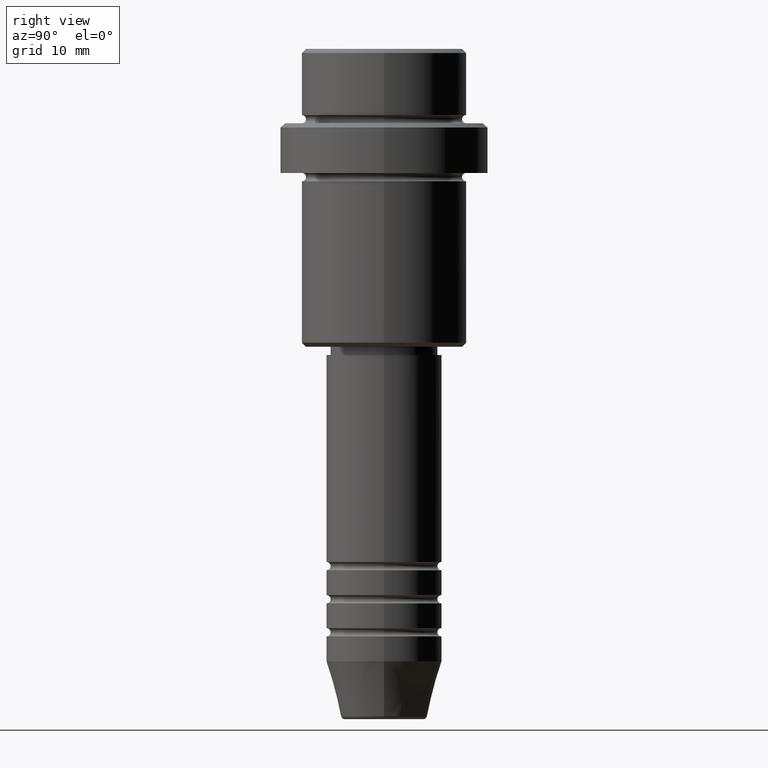
[diagram: clean part render]
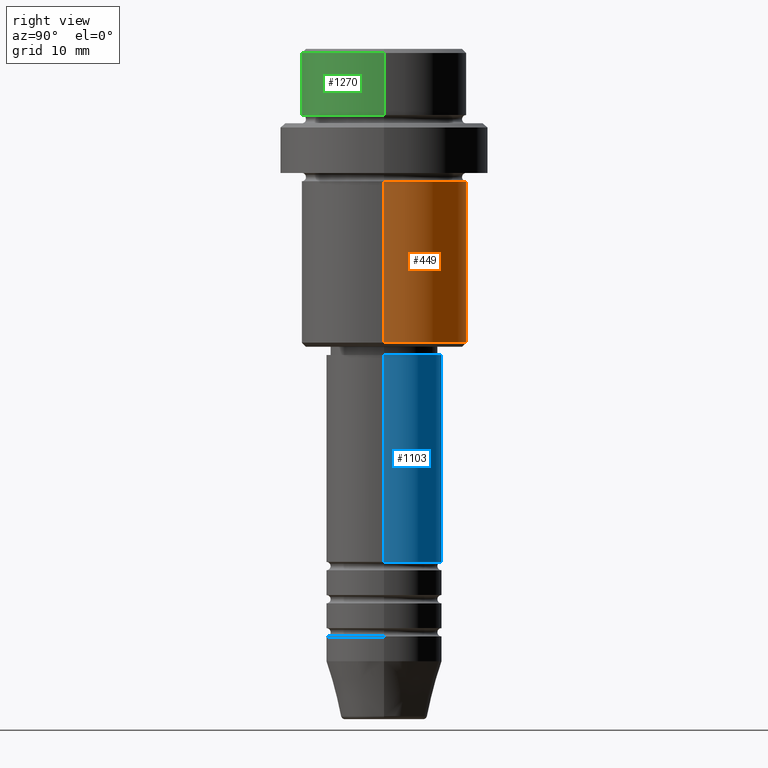
[diagram: same view with three faces highlighted in distinct colors, each labeled with its STEP entity id]
A machine part, right view with three faces highlighted in distinct colors.
Their STEP definitions:

[orange] entity #449 — the highlighted cylindrical surface (partial cylindrical patch) has radius 10 mm, axis along (-0, -0, 1).
#42 = DIRECTION ( 'NONE',  ( -0.000000000000000000, -0.000000000000000000, 1.000000000000000000 ) ) ;
#43 = EDGE_CURVE ( 'NONE', #511, #964, #647, .T. ) ;
#85 = CARTESIAN_POINT ( 'NONE',  ( 9.999999999999998224, 0.000000000000000000, -16.00000000000000000 ) ) ;
#106 = CIRCLE ( 'NONE', #1359, 9.999999999999998224 ) ;
#263 = VECTOR ( 'NONE', #1017, 1000.000000000000000 ) ;
#269 = CYLINDRICAL_SURFACE ( 'NONE', #1224, 9.999999999999998224 ) ;
#312 = CARTESIAN_POINT ( 'NONE',  ( -9.999999999999998224, 1.224646799147353059E-15, 0.000000000000000000 ) ) ;
#377 = AXIS2_PLACEMENT_3D ( 'NONE', #655, #438, #989 ) ;
#426 = CIRCLE ( 'NONE', #377, 9.999999999999998224 ) ;
#438 = DIRECTION ( 'NONE',  ( -0.000000000000000000, -0.000000000000000000, 1.000000000000000000 ) ) ;
#449 = ADVANCED_FACE ( 'NONE', ( #912 ), #269, .T. ) ;
#495 = CARTESIAN_POINT ( 'NONE',  ( 0.000000000000000000, 0.000000000000000000, 0.000000000000000000 ) ) ;
#501 = CARTESIAN_POINT ( 'NONE',  ( -9.999999999999998224, 1.224646799147353059E-15, -35.50000000000001421 ) ) ;
#506 = CARTESIAN_POINT ( 'NONE',  ( 9.999999999999998224, 0.000000000000000000, -35.50000000000001421 ) ) ;
#509 = VECTOR ( 'NONE', #636, 1000.000000000000000 ) ;
#511 = VERTEX_POINT ( 'NONE', #501 ) ;
#533 = VERTEX_POINT ( 'NONE', #506 ) ;
#636 = DIRECTION ( 'NONE',  ( -0.000000000000000000, -0.000000000000000000, 1.000000000000000000 ) ) ;
#647 = LINE ( 'NONE', #312, #509 ) ;
#655 = CARTESIAN_POINT ( 'NONE',  ( 0.000000000000000000, 0.000000000000000000, -35.50000000000001421 ) ) ;
#667 = VERTEX_POINT ( 'NONE', #85 ) ;
#668 = CARTESIAN_POINT ( 'NONE',  ( -9.999999999999998224, 1.224646799147353059E-15, -16.00000000000000000 ) ) ;
#678 = CARTESIAN_POINT ( 'NONE',  ( 9.999999999999998224, 0.000000000000000000, 0.000000000000000000 ) ) ;
#681 = LINE ( 'NONE', #678, #263 ) ;
#707 = ORIENTED_EDGE ( 'NONE', *, *, #1108, .F. ) ;
#887 = CARTESIAN_POINT ( 'NONE',  ( 0.000000000000000000, 0.000000000000000000, -16.00000000000000000 ) ) ;
#896 = DIRECTION ( 'NONE',  ( 1.000000000000000000, 0.000000000000000000, 0.000000000000000000 ) ) ;
#912 = FACE_OUTER_BOUND ( 'NONE', #1181, .T. ) ;
#956 = ORIENTED_EDGE ( 'NONE', *, *, #43, .T. ) ;
#964 = VERTEX_POINT ( 'NONE', #668 ) ;
#974 = ORIENTED_EDGE ( 'NONE', *, *, #998, .T. ) ;
#989 = DIRECTION ( 'NONE',  ( -1.000000000000000000, 0.000000000000000000, 0.000000000000000000 ) ) ;
#998 = EDGE_CURVE ( 'NONE', #533, #511, #426, .T. ) ;
#1017 = DIRECTION ( 'NONE',  ( -0.000000000000000000, -0.000000000000000000, 1.000000000000000000 ) ) ;
#1033 = EDGE_CURVE ( 'NONE', #667, #964, #106, .T. ) ;
#1108 = EDGE_CURVE ( 'NONE', #533, #667, #681, .T. ) ;
#1181 = EDGE_LOOP ( 'NONE', ( #974, #956, #1363, #707 ) ) ;
#1224 = AXIS2_PLACEMENT_3D ( 'NONE', #495, #42, #1357 ) ;
#1327 = DIRECTION ( 'NONE',  ( -0.000000000000000000, -0.000000000000000000, 1.000000000000000000 ) ) ;
#1357 = DIRECTION ( 'NONE',  ( 1.000000000000000000, 0.000000000000000000, 0.000000000000000000 ) ) ;
#1359 = AXIS2_PLACEMENT_3D ( 'NONE', #887, #1327, #896 ) ;
#1363 = ORIENTED_EDGE ( 'NONE', *, *, #1033, .F. ) ;

[blue] entity #1103 — the highlighted cylindrical surface (partial cylindrical patch) has radius 7 mm, axis along (-0, -0, 1).
#5 = DIRECTION ( 'NONE',  ( -0.000000000000000000, -0.000000000000000000, 1.000000000000000000 ) ) ;
#12 = VECTOR ( 'NONE', #21, 1000.000000000000000 ) ;
#21 = DIRECTION ( 'NONE',  ( -0.000000000000000000, -0.000000000000000000, 1.000000000000000000 ) ) ;
#196 = ORIENTED_EDGE ( 'NONE', *, *, #1153, .F. ) ;
#287 = ORIENTED_EDGE ( 'NONE', *, *, #1366, .T. ) ;
#331 = CARTESIAN_POINT ( 'NONE',  ( 7.000000000000000000, 0.000000000000000000, -61.99999999999987921 ) ) ;
#349 = CARTESIAN_POINT ( 'NONE',  ( -7.000000000000000000, 8.572527594031473190E-16, 0.000000000000000000 ) ) ;
#358 = DIRECTION ( 'NONE',  ( -0.000000000000000000, -0.000000000000000000, 1.000000000000000000 ) ) ;
#382 = EDGE_LOOP ( 'NONE', ( #639, #287, #965, #196 ) ) ;
#470 = AXIS2_PLACEMENT_3D ( 'NONE', #1001, #5, #556 ) ;
#518 = AXIS2_PLACEMENT_3D ( 'NONE', #1030, #684, #1342 ) ;
#541 = VECTOR ( 'NONE', #589, 1000.000000000000000 ) ;
#549 = CARTESIAN_POINT ( 'NONE',  ( -7.000000000000000000, 8.572527594031473190E-16, -37.00000000000000000 ) ) ;
#556 = DIRECTION ( 'NONE',  ( 1.000000000000000000, 0.000000000000000000, 0.000000000000000000 ) ) ;
#581 = CYLINDRICAL_SURFACE ( 'NONE', #834, 7.000000000000000000 ) ;
#587 = DIRECTION ( 'NONE',  ( 1.000000000000000000, 0.000000000000000000, 0.000000000000000000 ) ) ;
#589 = DIRECTION ( 'NONE',  ( -0.000000000000000000, -0.000000000000000000, 1.000000000000000000 ) ) ;
#639 = ORIENTED_EDGE ( 'NONE', *, *, #1160, .T. ) ;
#684 = DIRECTION ( 'NONE',  ( -0.000000000000000000, -0.000000000000000000, 1.000000000000000000 ) ) ;
#744 = VERTEX_POINT ( 'NONE', #1192 ) ;
#763 = CIRCLE ( 'NONE', #470, 7.000000000000000000 ) ;
#809 = CARTESIAN_POINT ( 'NONE',  ( 7.000000000000000000, 0.000000000000000000, -37.00000000000000000 ) ) ;
#834 = AXIS2_PLACEMENT_3D ( 'NONE', #1340, #358, #587 ) ;
#904 = FACE_OUTER_BOUND ( 'NONE', #382, .T. ) ;
#965 = ORIENTED_EDGE ( 'NONE', *, *, #1316, .F. ) ;
#995 = LINE ( 'NONE', #349, #12 ) ;
#1001 = CARTESIAN_POINT ( 'NONE',  ( 0.000000000000000000, 0.000000000000000000, -37.00000000000000000 ) ) ;
#1030 = CARTESIAN_POINT ( 'NONE',  ( 0.000000000000000000, 0.000000000000000000, -61.99999999999987921 ) ) ;
#1103 = ADVANCED_FACE ( 'NONE', ( #904 ), #581, .T. ) ;
#1128 = CIRCLE ( 'NONE', #518, 7.000000000000000000 ) ;
#1132 = LINE ( 'NONE', #1246, #541 ) ;
#1150 = VERTEX_POINT ( 'NONE', #809 ) ;
#1153 = EDGE_CURVE ( 'NONE', #1408, #1150, #1132, .T. ) ;
#1160 = EDGE_CURVE ( 'NONE', #1408, #744, #1128, .T. ) ;
#1192 = CARTESIAN_POINT ( 'NONE',  ( -7.000000000000000000, 8.572527594031473190E-16, -61.99999999999987921 ) ) ;
#1246 = CARTESIAN_POINT ( 'NONE',  ( 7.000000000000000000, 0.000000000000000000, 0.000000000000000000 ) ) ;
#1316 = EDGE_CURVE ( 'NONE', #1150, #1390, #763, .T. ) ;
#1340 = CARTESIAN_POINT ( 'NONE',  ( 0.000000000000000000, 0.000000000000000000, 0.000000000000000000 ) ) ;
#1342 = DIRECTION ( 'NONE',  ( 1.000000000000000000, 0.000000000000000000, 0.000000000000000000 ) ) ;
#1366 = EDGE_CURVE ( 'NONE', #744, #1390, #995, .T. ) ;
#1390 = VERTEX_POINT ( 'NONE', #549 ) ;
#1408 = VERTEX_POINT ( 'NONE', #331 ) ;

[green] entity #1270 — the highlighted cylindrical surface (partial cylindrical patch) has radius 10 mm, axis along (-0, -0, 1).
#4 = EDGE_CURVE ( 'NONE', #1183, #1197, #971, .T. ) ;
#13 = CIRCLE ( 'NONE', #170, 9.999999999999998224 ) ;
#41 = DIRECTION ( 'NONE',  ( -0.000000000000000000, -0.000000000000000000, 1.000000000000000000 ) ) ;
#170 = AXIS2_PLACEMENT_3D ( 'NONE', #1262, #485, #385 ) ;
#251 = ORIENTED_EDGE ( 'NONE', *, *, #4, .T. ) ;
#252 = CYLINDRICAL_SURFACE ( 'NONE', #1194, 9.999999999999998224 ) ;
#262 = CARTESIAN_POINT ( 'NONE',  ( 9.999999999999998224, 0.000000000000000000, -0.4999999999999970024 ) ) ;
#294 = DIRECTION ( 'NONE',  ( 0.000000000000000000, 0.000000000000000000, -1.000000000000000000 ) ) ;
#311 = CARTESIAN_POINT ( 'NONE',  ( 0.000000000000000000, 0.000000000000000000, -0.4999999999999970024 ) ) ;
#376 = CARTESIAN_POINT ( 'NONE',  ( 9.999999999999998224, 0.000000000000000000, -7.999999999999998224 ) ) ;
#385 = DIRECTION ( 'NONE',  ( 1.000000000000000000, 0.000000000000000000, 0.000000000000000000 ) ) ;
#404 = EDGE_CURVE ( 'NONE', #631, #1183, #13, .T. ) ;
#447 = DIRECTION ( 'NONE',  ( -0.000000000000000000, -0.000000000000000000, 1.000000000000000000 ) ) ;
#476 = FACE_OUTER_BOUND ( 'NONE', #1414, .T. ) ;
#480 = DIRECTION ( 'NONE',  ( 1.000000000000000000, 0.000000000000000000, 0.000000000000000000 ) ) ;
#485 = DIRECTION ( 'NONE',  ( -0.000000000000000000, -0.000000000000000000, 1.000000000000000000 ) ) ;
#572 = LINE ( 'NONE', #1104, #990 ) ;
#631 = VERTEX_POINT ( 'NONE', #633 ) ;
#633 = CARTESIAN_POINT ( 'NONE',  ( -9.999999999999998224, 1.224646799147353059E-15, -7.999999999999998224 ) ) ;
#666 = DIRECTION ( 'NONE',  ( -0.000000000000000000, -0.000000000000000000, 1.000000000000000000 ) ) ;
#824 = VECTOR ( 'NONE', #447, 1000.000000000000000 ) ;
#871 = EDGE_CURVE ( 'NONE', #1197, #957, #901, .T. ) ;
#901 = CIRCLE ( 'NONE', #1061, 9.999999999999998224 ) ;
#952 = ORIENTED_EDGE ( 'NONE', *, *, #871, .T. ) ;
#957 = VERTEX_POINT ( 'NONE', #1417 ) ;
#968 = DIRECTION ( 'NONE',  ( 1.000000000000000000, 0.000000000000000000, 0.000000000000000000 ) ) ;
#971 = LINE ( 'NONE', #1296, #824 ) ;
#990 = VECTOR ( 'NONE', #666, 1000.000000000000000 ) ;
#1019 = CARTESIAN_POINT ( 'NONE',  ( 0.000000000000000000, 0.000000000000000000, 0.000000000000000000 ) ) ;
#1060 = ORIENTED_EDGE ( 'NONE', *, *, #1375, .F. ) ;
#1061 = AXIS2_PLACEMENT_3D ( 'NONE', #311, #294, #968 ) ;
#1104 = CARTESIAN_POINT ( 'NONE',  ( -9.999999999999998224, 1.224646799147353059E-15, 0.000000000000000000 ) ) ;
#1183 = VERTEX_POINT ( 'NONE', #376 ) ;
#1194 = AXIS2_PLACEMENT_3D ( 'NONE', #1019, #41, #480 ) ;
#1197 = VERTEX_POINT ( 'NONE', #262 ) ;
#1262 = CARTESIAN_POINT ( 'NONE',  ( 0.000000000000000000, 0.000000000000000000, -7.999999999999998224 ) ) ;
#1270 = ADVANCED_FACE ( 'NONE', ( #476 ), #252, .T. ) ;
#1271 = ORIENTED_EDGE ( 'NONE', *, *, #404, .T. ) ;
#1296 = CARTESIAN_POINT ( 'NONE',  ( 9.999999999999998224, 0.000000000000000000, 0.000000000000000000 ) ) ;
#1375 = EDGE_CURVE ( 'NONE', #631, #957, #572, .T. ) ;
#1414 = EDGE_LOOP ( 'NONE', ( #1060, #1271, #251, #952 ) ) ;
#1417 = CARTESIAN_POINT ( 'NONE',  ( -9.999999999999998224, 1.224646799147353059E-15, -0.4999999999999970024 ) ) ;